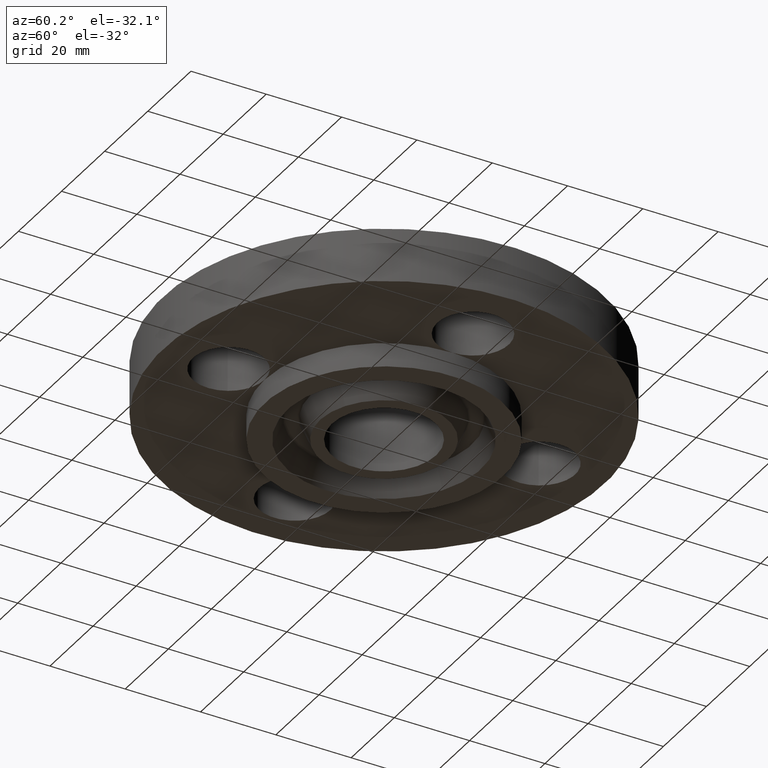
[diagram: clean part render]
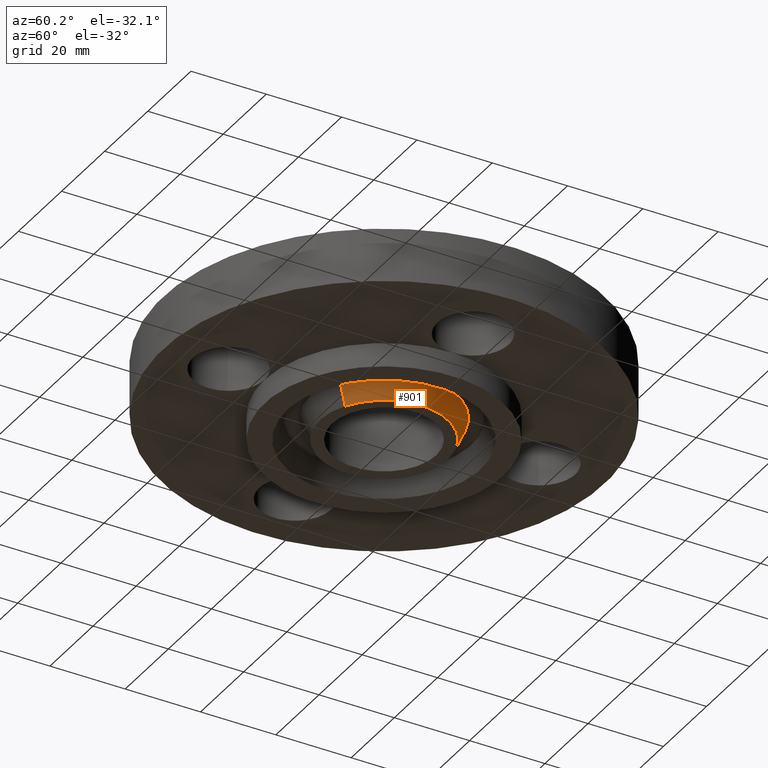
[diagram: same view with one face highlighted and labeled with its STEP entity id]
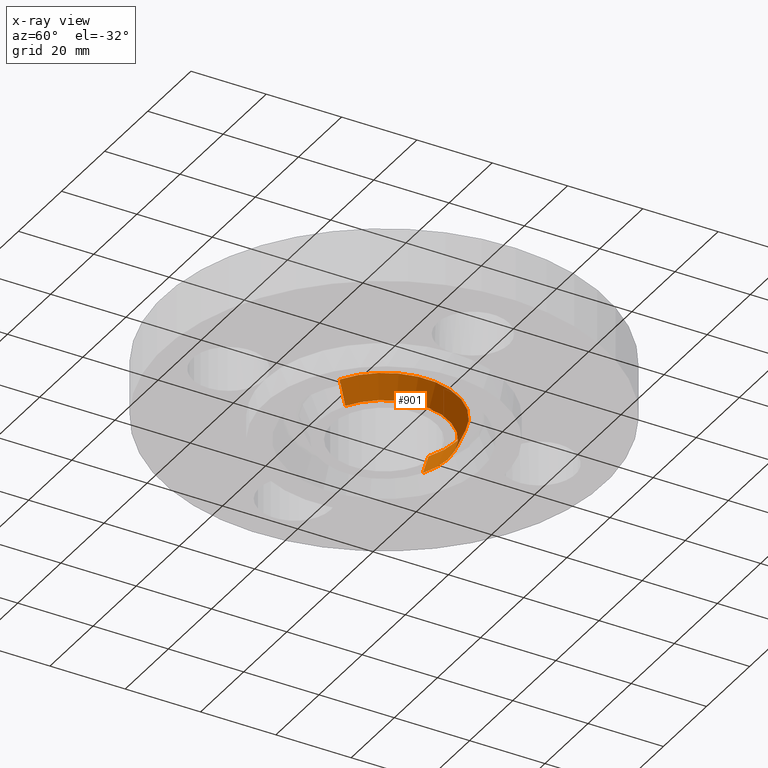
[diagram: x-ray of the same camera — body ghosted, the highlighted face saturated]
A machine part, auxiliary view. The second image highlights one B-rep face of the part: STEP entity #901.
The next image is the same camera in x-ray: the body ghosted, the highlighted face saturated — about 0% of this face is hidden behind the body in this view.
In plain terms, the highlighted conical surface has half-angle 23 deg.
Its self-contained STEP definition (entity closure, byte-faithful):
#707=AXIS2_PLACEMENT_3D('Circle Axis2P3D',#705,#706,$) ;
#851=AXIS2_PLACEMENT_3D('Circle Axis2P3D',#849,#850,$) ;
#883=AXIS2_PLACEMENT_3D('Cone Axis2P3D',#880,#881,#882) ;
#705=CARTESIAN_POINT('Axis2P3D Location',(-6.99353086378E-017,1.39870617276E-016,-0.250000000001)) ;
#709=CARTESIAN_POINT('Vertex',(-0.322102048113,0.589603844208,-0.250000000001)) ;
#711=CARTESIAN_POINT('Vertex',(0.322102048113,-0.589603844208,-0.250000000001)) ;
#846=CARTESIAN_POINT('Vertex',(0.369097218853,-0.675627927229,-0.0190701156784)) ;
#849=CARTESIAN_POINT('Axis2P3D Location',(0.,0.,-0.0190701156784)) ;
#853=CARTESIAN_POINT('Vertex',(-0.369097218853,0.675627927229,-0.0190701156784)) ;
#880=CARTESIAN_POINT('Axis2P3D Location',(0.,0.,-0.310000000001)) ;
#885=CARTESIAN_POINT('Line Origine',(-0.345599633483,0.632615885718,-0.13453505784)) ;
#890=CARTESIAN_POINT('Line Origine',(0.345599633483,-0.632615885718,-0.13453505784)) ;
#706=DIRECTION('Axis2P3D Direction',(0.,0.,-0.0393700787402)) ;
#850=DIRECTION('Axis2P3D Direction',(0.,0.,0.0393700787402)) ;
#881=DIRECTION('Axis2P3D Direction',(0.,0.,0.0393700787402)) ;
#882=DIRECTION('Axis2P3D XDirection',(-0.0188750212049,0.0345504945626,0.)) ;
#886=DIRECTION('Vector Direction',(-0.00737505833565,0.0134999537303,0.0362403485611)) ;
#891=DIRECTION('Vector Direction',(0.00737505833565,-0.0134999537303,0.0362403485611)) ;
#887=VECTOR('Line Direction',#886,0.0393700787402) ;
#892=VECTOR('Line Direction',#891,0.0393700787402) ;
#896=ORIENTED_EDGE('',*,*,#889,.F.) ;
#897=ORIENTED_EDGE('',*,*,#855,.F.) ;
#898=ORIENTED_EDGE('',*,*,#894,.T.) ;
#899=ORIENTED_EDGE('',*,*,#713,.F.) ;
#901=ADVANCED_FACE('PartBody',(#900),#884,.T.) ;
#708=CIRCLE('generated circle',#707,0.671850000003) ;
#852=CIRCLE('generated circle',#851,0.769873920208) ;
#884=CONICAL_SURFACE('Cone',#883,0.64638151103,0.401425727959) ;
#713=EDGE_CURVE('',#710,#712,#708,.T.) ;
#855=EDGE_CURVE('',#847,#854,#852,.T.) ;
#889=EDGE_CURVE('',#854,#710,#888,.F.) ;
#894=EDGE_CURVE('',#847,#712,#893,.F.) ;
#895=EDGE_LOOP('',(#896,#897,#898,#899)) ;
#900=FACE_OUTER_BOUND('',#895,.T.) ;
#888=LINE('Line',#885,#887) ;
#893=LINE('Line',#890,#892) ;
#710=VERTEX_POINT('',#709) ;
#712=VERTEX_POINT('',#711) ;
#847=VERTEX_POINT('',#846) ;
#854=VERTEX_POINT('',#853) ;